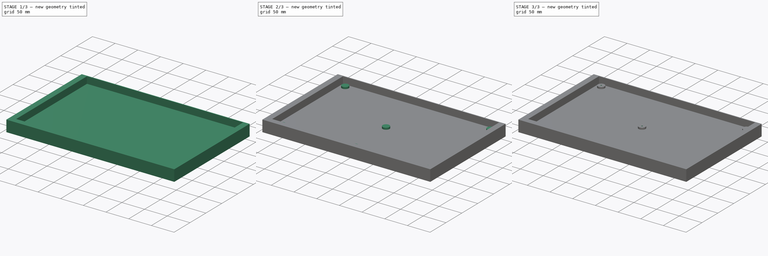
[diagram: build sequence overview — one tinted view per stage of 3, left to right]
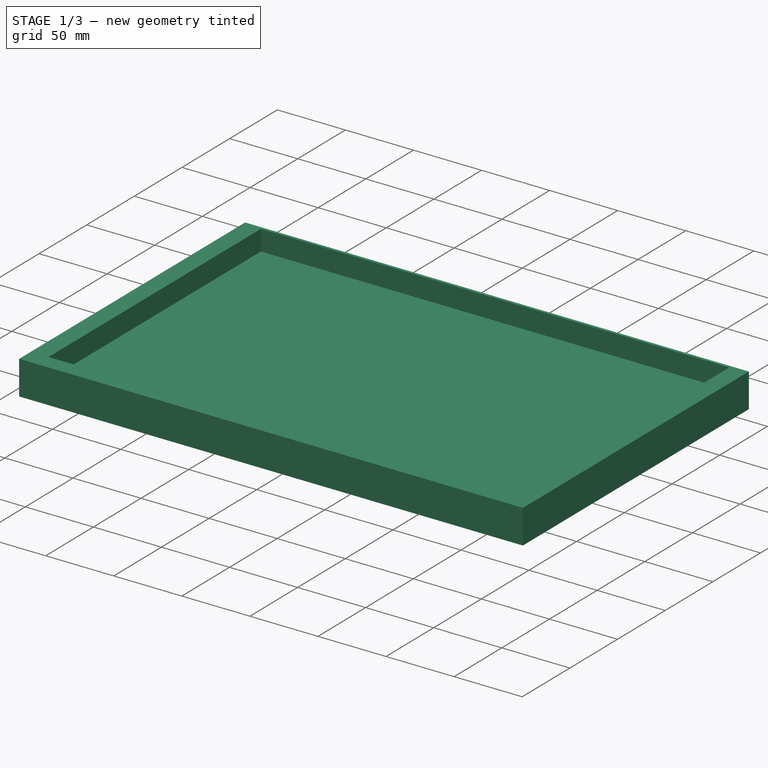
[diagram: stage 1 of 3 — iso view after this stage's code; geometry added in this stage tinted green]
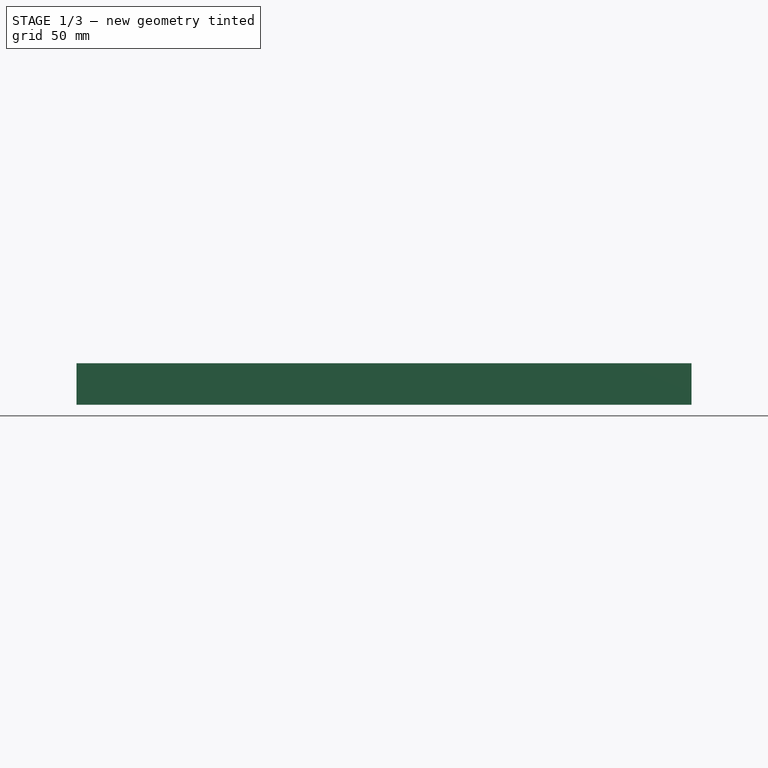
[diagram: stage 1 of 3 — front view after this stage's code; geometry added in this stage tinted green]
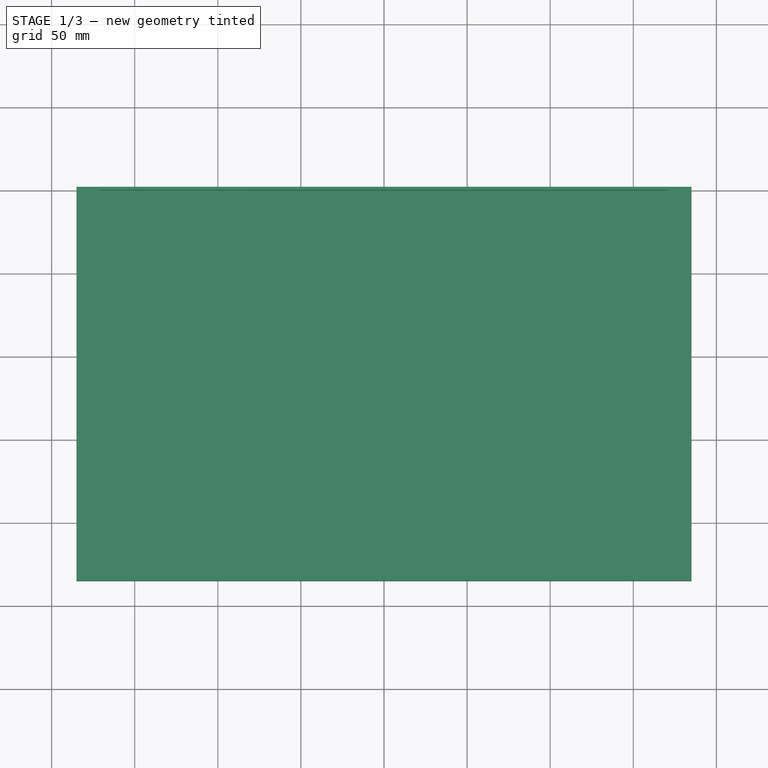
[diagram: stage 1 of 3 — top view after this stage's code; geometry added in this stage tinted green]
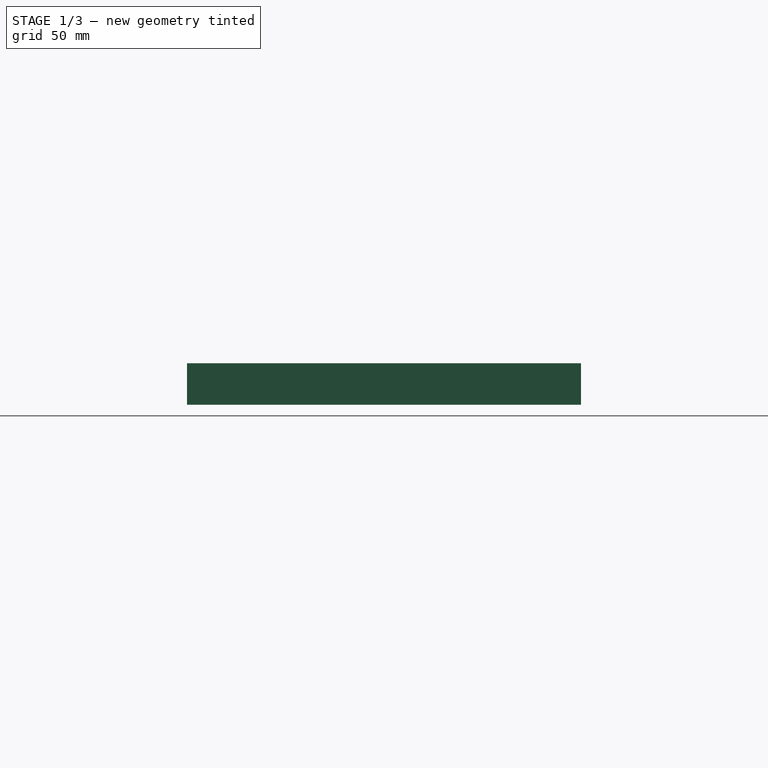
[diagram: stage 1 of 3 — right view after this stage's code; geometry added in this stage tinted green]
FCSTD DOCUMENT  (FreeCAD 0.21R33771 (Git))
Label: Udong
License: All rights reserved
LicenseURL: https://en.wikipedia.org/wiki/All_rights_reserved
objects: App::Link×91, Part::Feature×21, Sketcher::SketchObject×8, App::Part×8, PartDesign::CoordinateSystem×3, PartDesign::Pad×2, PartDesign::Pocket×2, Spreadsheet::Sheet×1, PartDesign::Hole×1, PartDesign::Body×1
note: 43 computed .brp shape members not serialized (recipe doc carries the construction recipe); baked Part::Feature solids carry a one-line shape summary decoded from their .brp

FEATURE [PartDesign::CoordinateSystem] Local_CS_1531
  AttacherType = Attacher::AttachEngine3D
  MapMode = 2
FEATURE [Sketcher::SketchObject] Sketch
  FullyConstrained = true
  MapMode = 5
  expr: Constraints[3] = Spreadsheet.box_height
  expr: Constraints[4] = Spreadsheet.box_width
  expr: Constraints[9] = Spreadsheet.usb_wall_thickness
  sketch-geometry (4):
    g0: LineSegment StartX=-185 StartY=2 StartZ=0 EndX=185 EndY=2 EndZ=0
    g1: LineSegment StartX=185 StartY=2 StartZ=0 EndX=185 EndY=-235 EndZ=0
    g2: LineSegment StartX=185 StartY=-235 StartZ=0 EndX=-185 EndY=-235 EndZ=0
    g3: LineSegment StartX=-185 StartY=-235 StartZ=0 EndX=-185 EndY=2 EndZ=0
  constraints (11):
    c: Horizontal(g2)
    c: Vertical(g1)
    c: Vertical(g3)
    c: DistanceY(g1,g1) = 237
    c: DistanceX(g0,g0) = 370
    c: Coincident(g2,g1)
    c: Coincident(g3,g2)
    c: Coincident(g0,g1)
    c: Coincident(g0,g3)
    c: DistanceY(g-1,g0) = 2
    c: Symmetric(g0,g0,g-2)
FEATURE [PartDesign::CoordinateSystem] Local_CS_1532
  AttacherType = Attacher::AttachEngine3D
  MapMode = 2
  Support = -> [X_Axis001]
FEATURE [Part::Feature] Pcb_1531
  Placement = pos=(-210,20,0) rot=(0,0,1;0rad)
  shape: bbox 340 x 220 x 1 mm, 130 faces (baked)
FEATURE [Sketcher::SketchObject] PCB_Sketch_1531
  FullyConstrained = false
  sketch-geometry (4):
    g0: LineSegment StartX=-170 StartY=0 StartZ=0 EndX=170 EndY=0 EndZ=0
    g1: LineSegment StartX=170 StartY=0 StartZ=0 EndX=170 EndY=-220 EndZ=0
    g2: LineSegment StartX=170 StartY=-220 StartZ=0 EndX=-170 EndY=-220 EndZ=0
    g3: LineSegment StartX=-170 StartY=-220 StartZ=0 EndX=-170 EndY=0 EndZ=0
  constraints (4):
    c: Coincident(g2,g3)
    c: Coincident(g0,g3)
    c: Coincident(g1,g2)
    c: Coincident(g0,g1)
FEATURE [App::Part] Board_Geoms_1531
  Group = -> [Pcb_1531,PCB_Sketch_1531]
  Origin = -> Origin
FEATURE [Part::Feature] Shape  label="C50_C_0603_1608Metric_c96c1e5c2c5""
  Placement = pos=(38.445,-71.5,0) rot=(0,0,1;3.14159rad)
  shape: bbox 1.6 x 0.8 x 0.8 mm, 28 faces (baked)
FEATURE [Part::Feature] Shape001  label="R26_R_0603_1608Metric_21c035ecaa6""
  Placement = pos=(8.505,-133.5,0) rot=(0,0,1;3.14159rad)
  shape: bbox 1.6 x 0.8 x 0.45 mm, 26 faces (baked)
FEATURE [Part::Feature] Shape002  label="U22_SOIC_16_39x99mm_P127mm_6378aad0377""
  Placement = pos=(2.525,-49.525,0) rot=(0,0,1;1.5708rad)
  shape: bbox 9.9 x 6 x 1.75 mm, 276 faces (baked)
FEATURE [App::Link] C50_C_0603_1608Metric_c96c1e5c2c5__ln_  label="C47_C_0603_1608Metric_5ed9ba1823f""
  LinkPlacement = pos=(100.68,-82.39,0) rot=(0,0,1;0rad)
  LinkedObject = -> Shape
  Placement = pos=(100.68,-82.39,0) rot=(0,0,1;0rad)
FEATURE [Part::Feature] Shape003  label="R12_R_0402_1005Metric_db9d78effdc""
  Placement = pos=(114.68,-21.74,0) rot=(0,0,1;0rad)
  shape: bbox 1 x 0.5 x 0.35 mm, 26 faces (baked)
FEATURE [App::Link] R26_R_0603_1608Metric_21c035ecaa6__ln_  label="R29_R_0603_1608Metric_bb5f2daf42d""
  LinkPlacement = pos=(68.265,-63.5,0) rot=(0,0,1;3.14159rad)
  LinkedObject = -> Shape001
  Placement = pos=(68.265,-63.5,0) rot=(0,0,1;3.14159rad)
FEATURE [App::Link] C50_C_0603_1608Metric_c96c1e5c2c5__ln_001  label="C24_C_0603_1608Metric_a66f28ce9f9""
  LinkPlacement = pos=(-96.5,-64,0) rot=(0,0,1;3.14159rad)
  LinkedObject = -> Shape
  Placement = pos=(-96.5,-64,0) rot=(0,0,1;3.14159rad)
FEATURE [App::Link] R12_R_0402_1005Metric_db9d78effdc__ln_  label="R4_R_0402_1005Metric_258b4fce30b""
  LinkPlacement = pos=(-9.55,-30.3,0) rot=(0,0,1;3.14159rad)
  LinkedObject = -> Shape003
  Placement = pos=(-9.55,-30.3,0) rot=(0,0,1;3.14159rad)
FEATURE [Part::Feature] Shape004  label="Y1_Crystal_SMD_3225-4Pin_3.2x2.5mm_24c05a89e76""
  Placement = pos=(-0.6,-40.55,0) rot=(0,0,1;0rad)
  shape: bbox 3.2 x 2.501 x 0.64 mm, 28 faces (baked)
FEATURE [App::Link] C50_C_0603_1608Metric_c96c1e5c2c5__ln_002  label="C26_C_0603_1608Metric_c5d0a92b761""
  LinkPlacement = pos=(-126.5,-69,0) rot=(0,0,1;3.14159rad)
  LinkedObject = -> Shape
  Placement = pos=(-126.5,-69,0) rot=(0,0,1;3.14159rad)
FEATURE [Part::Feature] Shape005  label="C10_C_0402_1005Metric_8051af329a5""
  Placement = pos=(6.63,-31.92,0) rot=(0,0,1;0rad)
  shape: bbox 1 x 0.5 x 0.5 mm, 28 faces (baked)
FEATURE [App::Link] C50_C_0603_1608Metric_c96c1e5c2c5__ln_003  label="C42_C_0603_1608Metric_10c421a70c2""
  LinkPlacement = pos=(-6.475,-74.3,0) rot=(0,0,1;3.14159rad)
  LinkedObject = -> Shape
  Placement = pos=(-6.475,-74.3,0) rot=(0,0,1;3.14159rad)
FEATURE [App::Link] R12_R_0402_1005Metric_db9d78effdc__ln_001  label="R3_R_0402_1005Metric_57ae49104c8""
  LinkPlacement = pos=(-6.75,-5,0) rot=(0,0,1;0rad)
  LinkedObject = -> Shape003
  Placement = pos=(-6.75,-5,0) rot=(0,0,1;0rad)
FEATURE [App::Link] C50_C_0603_1608Metric_c96c1e5c2c5__ln_004  label="C28_C_0603_1608Metric_c915e1eda8a""
  LinkPlacement = pos=(-36.5,-64,0) rot=(0,0,1;3.14159rad)
  LinkedObject = -> Shape
  Placement = pos=(-36.5,-64,0) rot=(0,0,1;3.14159rad)
FEATURE [Part::Feature] Shape006  label="U18_SOT_23_eb7cd9b5780""
  Placement = pos=(10,-137.5,0) rot=(0,0,-1;1.5708rad)
  shape: bbox 3 x 2.5 x 1.2 mm, 76 faces (baked)
FEATURE [App::Link] C10_C_0402_1005Metric_8051af329a5__ln_  label="C8_C_0402_1005Metric_ed7bc4dc480""
  LinkPlacement = pos=(-5.68,-31.3,0) rot=(0,0,1;3.14159rad)
  LinkedObject = -> Shape005
  Placement = pos=(-5.68,-31.3,0) rot=(0,0,1;3.14159rad)
FEATURE [Part::Feature] Shape007  label="U1_SOT_223_39912d8b5e6""
  Placement = pos=(9.03,-15.226,0) rot=(0,0,-1;1.5708rad)
  shape: bbox 6.5 x 7 x 1.7 mm, 78 faces (baked)
FEATURE [App::Link] R26_R_0603_1608Metric_21c035ecaa6__ln_001  label="R14_R_0603_1608Metric_fb17d531891""
  LinkPlacement = pos=(-66.55,-61,0) rot=(0,0,1;3.14159rad)
  LinkedObject = -> Shape001
  Placement = pos=(-66.55,-61,0) rot=(0,0,1;3.14159rad)
FEATURE [App::Link] C50_C_0603_1608Metric_c96c1e5c2c5__ln_005  label="C51_C_0603_1608Metric_9cca8630005""
  LinkPlacement = pos=(70.79,-72.86,0) rot=(0,0,1;0rad)
  LinkedObject = -> Shape
  Placement = pos=(70.79,-72.86,0) rot=(0,0,1;0rad)
FEATURE [App::Link] R12_R_0402_1005Metric_db9d78effdc__ln_002  label="R2_R_0402_1005Metric_2f3c0bcd080""
  LinkPlacement = pos=(-6.76,-3.9,0) rot=(0,0,1;3.14159rad)
  LinkedObject = -> Shape003
  Placement = pos=(-6.76,-3.9,0) rot=(0,0,1;3.14159rad)
FEATURE [App::Link] R12_R_0402_1005Metric_db9d78effdc__ln_003  label="R6_R_0402_1005Metric_90d1c5fa8d6""
  LinkPlacement = pos=(-7.64,-30.3,0) rot=(0,0,1;3.14159rad)
  LinkedObject = -> Shape003
  Placement = pos=(-7.64,-30.3,0) rot=(0,0,1;3.14159rad)
FEATURE [App::Link] R12_R_0402_1005Metric_db9d78effdc__ln_004  label="R5_R_0402_1005Metric_a46c18ed2be""
  LinkPlacement = pos=(-15.352,-11.645,0) rot=(0,0,1;3.14159rad)
  LinkedObject = -> Shape003
  Placement = pos=(-15.352,-11.645,0) rot=(0,0,1;3.14159rad)
FEATURE [App::Link] C50_C_0603_1608Metric_c96c1e5c2c5__ln_006  label="C52_C_0603_1608Metric_5cf961af84a""
  LinkPlacement = pos=(68.275,-61.85,0) rot=(0,0,1;3.14159rad)
  LinkedObject = -> Shape
  Placement = pos=(68.275,-61.85,0) rot=(0,0,1;3.14159rad)
FEATURE [App::Link] C10_C_0402_1005Metric_8051af329a5__ln_001  label="C11_C_0402_1005Metric_d58156f1c66""
  LinkPlacement = pos=(8.67,-25.65,0) rot=(0,0,1;0rad)
  LinkedObject = -> Shape005
  Placement = pos=(8.67,-25.65,0) rot=(0,0,1;0rad)
FEATURE [App::Link] U18_SOT_23_eb7cd9b5780__ln_  label="U20_SOT_23_193b0e0585e""
  LinkPlacement = pos=(39.92,-77.5,0) rot=(0,0,-1;1.5708rad)
  LinkedObject = -> Shape006
  Placement = pos=(39.92,-77.5,0) rot=(0,0,-1;1.5708rad)
FEATURE [Part::Feature] Part__Feature  label="ConPins"
  shape: bbox 6 x 4.32 x 0.61 mm, 70 faces (baked)
FEATURE [Part::Feature] Part__Feature001  label="PcbPins"
  shape: bbox 6.9 x 0.99 x 0.3 mm, 122 faces (baked)
FEATURE [Part::Feature] Part__Feature002  label="Mold"
  shape: bbox 8.95 x 6.5 x 3.731 mm, 55 faces (baked)
FEATURE [Part::Feature] Part__Feature003  label="Frame"
  shape: bbox 8.95 x 7.3 x 4.2 mm, 323 faces (baked)
FEATURE [App::Part] HRO_TYPE_C_31_M_12  label="J1_HRO_TYPE_C_31_M_12_6a9f92c07a2""
  Group = -> [Part__Feature,Part__Feature001,Part__Feature002,Part__Feature003]
  Origin = -> Origin008
  Placement = pos=(4.494,0.55,0) rot=(0,0,1;3.14159rad)
FEATURE [App::Link] R12_R_0402_1005Metric_db9d78effdc__ln_005  label="R1_R_0402_1005Metric_6123cfe5b15""
  LinkPlacement = pos=(-5.69,-30.3,0) rot=(0,0,1;3.14159rad)
  LinkedObject = -> Shape003
  Placement = pos=(-5.69,-30.3,0) rot=(0,0,1;3.14159rad)
FEATURE [App::Link] C10_C_0402_1005Metric_8051af329a5__ln_002  label="C15_C_0402_1005Metric_32920b63574""
  LinkPlacement = pos=(-3.9,-16.57,0) rot=(0,0,1;1.5708rad)
  LinkedObject = -> Shape005
  Placement = pos=(-3.9,-16.57,0) rot=(0,0,1;1.5708rad)
FEATURE [Part::Feature] Shape008  label="C20_C_0805_2012Metric_c2799205fcc""
  Placement = pos=(-74.2,-40.075,0) rot=(0,0,-1;1.5708rad)
  shape: bbox 1.25 x 2 x 1.25 mm, 28 faces (baked)
FEATURE [App::Link] C50_C_0603_1608Metric_c96c1e5c2c5__ln_007  label="C36_C_0603_1608Metric_a18fb9cf965""
  LinkPlacement = pos=(-66.445,-91.49,0) rot=(0,0,1;3.14159rad)
  LinkedObject = -> Shape
  Placement = pos=(-66.445,-91.49,0) rot=(0,0,1;3.14159rad)
FEATURE [App::Link] C10_C_0402_1005Metric_8051af329a5__ln_003  label="C16_C_0402_1005Metric_c64c3fe8ec7""
  LinkPlacement = pos=(128.77,-20.5,0) rot=(0,0,1;0rad)
  LinkedObject = -> Shape005
  Placement = pos=(128.77,-20.5,0) rot=(0,0,1;0rad)
FEATURE [App::Link] C50_C_0603_1608Metric_c96c1e5c2c5__ln_008  label="C30_C_0603_1608Metric_3292674c1e6""
  LinkPlacement = pos=(-126.525,-101.5,0) rot=(0,0,1;3.14159rad)
  LinkedObject = -> Shape
  Placement = pos=(-126.525,-101.5,0) rot=(0,0,1;3.14159rad)
FEATURE [App::Link] C10_C_0402_1005Metric_8051af329a5__ln_004  label="C12_C_0402_1005Metric_4aea76d61e9""
  LinkPlacement = pos=(8.67,-26.6,0) rot=(0,0,1;0rad)
  LinkedObject = -> Shape005
  Placement = pos=(8.67,-26.6,0) rot=(0,0,1;0rad)
FEATURE [App::Link] C50_C_0603_1608Metric_c96c1e5c2c5__ln_009  label="C37_C_0603_1608Metric_44cd4f96dfb""
  LinkPlacement = pos=(125.61,-107.58,0) rot=(0,0,1;0rad)
  LinkedObject = -> Shape
  Placement = pos=(125.61,-107.58,0) rot=(0,0,1;0rad)
FEATURE [App::Link] C50_C_0603_1608Metric_c96c1e5c2c5__ln_010  label="C49_C_0603_1608Metric_df72e46ba2a""
  LinkPlacement = pos=(40.605,-82.86,0) rot=(0,0,1;0rad)
  LinkedObject = -> Shape
  Placement = pos=(40.605,-82.86,0) rot=(0,0,1;0rad)
FEATURE [App::Link] C10_C_0402_1005Metric_8051af329a5__ln_005  label="C6_C_0402_1005Metric_80b337fe1a7""
  LinkPlacement = pos=(-0.5,-22.9,0) rot=(0,0,1;1.5708rad)
  LinkedObject = -> Shape005
  Placement = pos=(-0.5,-22.9,0) rot=(0,0,1;1.5708rad)
FEATURE [App::Link] C50_C_0603_1608Metric_c96c1e5c2c5__ln_011  label="C39_C_0603_1608Metric_eccfd1e353f""
  LinkPlacement = pos=(-19.33,-132.83,0) rot=(0,0,1;0rad)
  LinkedObject = -> Shape
  Placement = pos=(-19.33,-132.83,0) rot=(0,0,1;0rad)
FEATURE [App::Link] C10_C_0402_1005Metric_8051af329a5__ln_006  label="C4_C_0402_1005Metric_17d61923515""
  LinkPlacement = pos=(-1.5,-22.58,0) rot=(0,0,1;1.5708rad)
  LinkedObject = -> Shape005
  Placement = pos=(-1.5,-22.58,0) rot=(0,0,1;1.5708rad)
FEATURE [App::Link] R26_R_0603_1608Metric_21c035ecaa6__ln_002  label="R16_R_0603_1608Metric_ccc08d43b62""
  LinkPlacement = pos=(-126.55,-70.8,0) rot=(0,0,1;3.14159rad)
  LinkedObject = -> Shape001
  Placement = pos=(-126.55,-70.8,0) rot=(0,0,1;3.14159rad)
FEATURE [App::Link] R26_R_0603_1608Metric_21c035ecaa6__ln_003  label="R23_R_0603_1608Metric_8ae852cfb8c""
  LinkPlacement = pos=(-21.575,-123.5,0) rot=(0,0,1;3.14159rad)
  LinkedObject = -> Shape001
  Placement = pos=(-21.575,-123.5,0) rot=(0,0,1;3.14159rad)
FEATURE [App::Link] C10_C_0402_1005Metric_8051af329a5__ln_007  label="C18_C_0402_1005Metric_785087baeae""
  LinkPlacement = pos=(-2.98,-37.9,0) rot=(0,0,1;0rad)
  LinkedObject = -> Shape005
  Placement = pos=(-2.98,-37.9,0) rot=(0,0,1;0rad)
FEATURE [App::Link] U18_SOT_23_eb7cd9b5780__ln_001  label="U11_SOT_23_c54e9ac4579""
  LinkPlacement = pos=(-35.055,-102.5,0) rot=(0,0,-1;1.5708rad)
  LinkedObject = -> Shape006
  Placement = pos=(-35.055,-102.5,0) rot=(0,0,-1;1.5708rad)
FEATURE [App::Link] U18_SOT_23_eb7cd9b5780__ln_002  label="U14_SOT_23_c796a763239""
  LinkPlacement = pos=(124.92,-102.5,0) rot=(0,0,-1;1.5708rad)
  LinkedObject = -> Shape006
  Placement = pos=(124.92,-102.5,0) rot=(0,0,-1;1.5708rad)
FEATURE [App::Link] U18_SOT_23_eb7cd9b5780__ln_003  label="U13_SOT_23_def66e8df92""
  LinkPlacement = pos=(-65,-97.5,0) rot=(0,0,-1;1.5708rad)
  LinkedObject = -> Shape006
  Placement = pos=(-65,-97.5,0) rot=(0,0,-1;1.5708rad)
FEATURE [App::Link] C50_C_0603_1608Metric_c96c1e5c2c5__ln_012  label="C44_C_0603_1608Metric_8ad17236dae""
  LinkPlacement = pos=(68.555,-31.5,0) rot=(0,0,1;3.14159rad)
  LinkedObject = -> Shape
  Placement = pos=(68.555,-31.5,0) rot=(0,0,1;3.14159rad)
FEATURE [App::Link] U18_SOT_23_eb7cd9b5780__ln_004  label="U19_SOT_23_1b1c07f0015""
  LinkPlacement = pos=(99.92,-77.5,0) rot=(0,0,-1;1.5708rad)
  LinkedObject = -> Shape006
  Placement = pos=(99.92,-77.5,0) rot=(0,0,-1;1.5708rad)
FEATURE [Part::Feature] Shape009  label="U4_SOT_353_SC_70_5_c5c4a7ec4eb""
  Placement = pos=(22.858,-12.6,0) rot=(0,0,1;1.5708rad)
  shape: bbox 2 x 2 x 1.05 mm, 104 faces (baked)
FEATURE [App::Link] C10_C_0402_1005Metric_8051af329a5__ln_008  label="C14_C_0402_1005Metric_135e438a0c9""
  LinkPlacement = pos=(4.204,-23.964,0) rot=(0,0,1;1.5708rad)
  LinkedObject = -> Shape005
  Placement = pos=(4.204,-23.964,0) rot=(0,0,1;1.5708rad)
FEATURE [App::Link] R12_R_0402_1005Metric_db9d78effdc__ln_006  label="R7_R_0402_1005Metric_7976de52eb1""
  LinkPlacement = pos=(-7.359,-8.103,0) rot=(0,0,-1;1.5708rad)
  LinkedObject = -> Shape003
  Placement = pos=(-7.359,-8.103,0) rot=(0,0,-1;1.5708rad)
FEATURE [App::Link] R26_R_0603_1608Metric_21c035ecaa6__ln_004  label="R22_R_0603_1608Metric_a8b4c104d3f""
  LinkPlacement = pos=(123.495,-98.6,0) rot=(0,0,1;3.14159rad)
  LinkedObject = -> Shape001
  Placement = pos=(123.495,-98.6,0) rot=(0,0,1;3.14159rad)
FEATURE [Part::Feature] Shape010  label="J3_PinSocket_1x03_P254mm_Horizontal_5e44ceccd07""
  Placement = pos=(-39.5,-10.5,0) rot=(0,0,-1;1.5708rad)
  shape: bbox 7.62 x 10.13 x 5.84 mm, 115 faces (baked)
FEATURE [App::Link] C10_C_0402_1005Metric_8051af329a5__ln_009  label="C19_C_0402_1005Metric_96db7f3dd26""
  LinkPlacement = pos=(0.22,-37.9,0) rot=(0,0,1;0rad)
  LinkedObject = -> Shape005
  Placement = pos=(0.22,-37.9,0) rot=(0,0,1;0rad)
FEATURE [Part::Feature] Shape011  label="U2_SOT_23_6_b919badb54f""
  Placement = pos=(0.2,-13.2335,0) rot=(0,0,-1;1.5708rad)
  shape: bbox 2.9 x 2.8 x 1.55 mm, 124 faces (baked)
FEATURE [App::Link] C10_C_0402_1005Metric_8051af329a5__ln_010  label="C13_C_0402_1005Metric_c561e764fb2""
  LinkPlacement = pos=(3.188,-23.964,0) rot=(0,0,1;1.5708rad)
  LinkedObject = -> Shape005
  Placement = pos=(3.188,-23.964,0) rot=(0,0,1;1.5708rad)
FEATURE [App::Link] U22_SOIC_16_39x99mm_P127mm_6378aad0377__ln_  label="U23_SOIC_16_39x99mm_P127mm_be25011a4b5""
  LinkPlacement = pos=(18.635,-49.5,0) rot=(0,0,1;1.5708rad)
  LinkedObject = -> Shape002
  Placement = pos=(18.635,-49.5,0) rot=(0,0,1;1.5708rad)
FEATURE [App::Link] U18_SOT_23_eb7cd9b5780__ln_005  label="U7_SOT_23_865893f3b19""
  LinkPlacement = pos=(-95.055,-70,0) rot=(0,0,-1;1.5708rad)
  LinkedObject = -> Shape006
  Placement = pos=(-95.055,-70,0) rot=(0,0,-1;1.5708rad)
FEATURE [App::Link] C50_C_0603_1608Metric_c96c1e5c2c5__ln_013  label="C33_C_0603_1608Metric_33d0c5bf11b""
  LinkPlacement = pos=(-94.26,-108.14,0) rot=(0,0,1;0rad)
  LinkedObject = -> Shape
  Placement = pos=(-94.26,-108.14,0) rot=(0,0,1;0rad)
FEATURE [App::Link] R12_R_0402_1005Metric_db9d78effdc__ln_007  label="R11_R_0402_1005Metric_d86542a4989""
  LinkPlacement = pos=(1.8,-23.9405,0) rot=(0,0,-1;1.5708rad)
  LinkedObject = -> Shape003
  Placement = pos=(1.8,-23.9405,0) rot=(0,0,-1;1.5708rad)
FEATURE [App::Link] R26_R_0603_1608Metric_21c035ecaa6__ln_005  label="R27_R_0603_1608Metric_0e33b4e58e1""
  LinkPlacement = pos=(98.505,-73.5,0) rot=(0,0,1;3.14159rad)
  LinkedObject = -> Shape001
  Placement = pos=(98.505,-73.5,0) rot=(0,0,1;3.14159rad)
FEATURE [Part::Feature] Shape012  label="U5_QFN-56-1EP_7x7mm_Pitch0.4mm_8d1bc4d90c8""
  Placement = pos=(0.08,-30.274,0) rot=(0,0,1;0rad)
  shape: bbox 7 x 7 x 0.92 mm, 350 faces (baked)
FEATURE [App::Link] R12_R_0402_1005Metric_db9d78effdc__ln_008  label="R8_R_0402_1005Metric_e16a0006320""
  LinkPlacement = pos=(15.85,-18.84,0) rot=(0,0,-1;1.5708rad)
  LinkedObject = -> Shape003
  Placement = pos=(15.85,-18.84,0) rot=(0,0,-1;1.5708rad)
FEATURE [App::Link] U18_SOT_23_eb7cd9b5780__ln_006  label="U10_SOT_23_3e4a07b202c""
  LinkPlacement = pos=(-125.08,-107.5,0) rot=(0,0,-1;1.5708rad)
  LinkedObject = -> Shape006
  Placement = pos=(-125.08,-107.5,0) rot=(0,0,-1;1.5708rad)
FEATURE [App::Link] R26_R_0603_1608Metric_21c035ecaa6__ln_006  label="R25_R_0603_1608Metric_11cd58ee3bf""
  LinkPlacement = pos=(68.58,-33.5,0) rot=(0,0,1;3.14159rad)
  LinkedObject = -> Shape001
  Placement = pos=(68.58,-33.5,0) rot=(0,0,1;3.14159rad)
FEATURE [App::Link] U18_SOT_23_eb7cd9b5780__ln_007  label="U12_SOT_23_0a085770ca6""
  LinkPlacement = pos=(-95,-102.5,0) rot=(0,0,-1;1.5708rad)
  LinkedObject = -> Shape006
  Placement = pos=(-95,-102.5,0) rot=(0,0,-1;1.5708rad)
FEATURE [App::Link] C50_C_0603_1608Metric_c96c1e5c2c5__ln_014  label="C40_C_0603_1608Metric_97e5f20cd94""
  LinkPlacement = pos=(-21.525,-121.8,0) rot=(0,0,1;3.14159rad)
  LinkedObject = -> Shape
  Placement = pos=(-21.525,-121.8,0) rot=(0,0,1;3.14159rad)
FEATURE [App::Link] R26_R_0603_1608Metric_21c035ecaa6__ln_007  label="R20_R_0603_1608Metric_03efb36ce37""
  LinkPlacement = pos=(-96.495,-98.5,0) rot=(0,0,1;3.14159rad)
  LinkedObject = -> Shape001
  Placement = pos=(-96.495,-98.5,0) rot=(0,0,1;3.14159rad)
FEATURE [App::Link] C50_C_0603_1608Metric_c96c1e5c2c5__ln_015  label="C21_C_0603_1608Metric_d27d73a4e6d""
  LinkPlacement = pos=(-64.33,-70.59,0) rot=(0,0,1;0rad)
  LinkedObject = -> Shape
  Placement = pos=(-64.33,-70.59,0) rot=(0,0,1;0rad)
FEATURE [App::Link] R26_R_0603_1608Metric_21c035ecaa6__ln_008  label="R24_R_0603_1608Metric_e26bc699a82""
  LinkPlacement = pos=(-6.495,-76,0) rot=(0,0,1;3.14159rad)
  LinkedObject = -> Shape001
  Placement = pos=(-6.495,-76,0) rot=(0,0,1;3.14159rad)
FEATURE [App::Link] R26_R_0603_1608Metric_21c035ecaa6__ln_009  label="R15_R_0603_1608Metric_99d7860f7d8""
  LinkPlacement = pos=(-96.55,-65.8,0) rot=(0,0,1;3.14159rad)
  LinkedObject = -> Shape001
  Placement = pos=(-96.55,-65.8,0) rot=(0,0,1;3.14159rad)
FEATURE [App::Link] U18_SOT_23_eb7cd9b5780__ln_008  label="U16_SOT_23_823f3f7b337""
  LinkPlacement = pos=(-5,-80,0) rot=(0,0,-1;1.5708rad)
  LinkedObject = -> Shape006
  Placement = pos=(-5,-80,0) rot=(0,0,-1;1.5708rad)
FEATURE [App::Link] R26_R_0603_1608Metric_21c035ecaa6__ln_010  label="R18_R_0603_1608Metric_af1bb1786c9""
  LinkPlacement = pos=(-126.575,-103.5,0) rot=(0,0,1;3.14159rad)
  LinkedObject = -> Shape001
  Placement = pos=(-126.575,-103.5,0) rot=(0,0,1;3.14159rad)
FEATURE [App::Link] C50_C_0603_1608Metric_c96c1e5c2c5__ln_016  label="C29_C_0603_1608Metric_1b0acdc6366""
  LinkPlacement = pos=(-124.34,-112.97,0) rot=(0,0,1;0rad)
  LinkedObject = -> Shape
  Placement = pos=(-124.34,-112.97,0) rot=(0,0,1;0rad)
FEATURE [App::Link] C50_C_0603_1608Metric_c96c1e5c2c5__ln_017  label="C46_C_0603_1608Metric_1f436d3a905""
  LinkPlacement = pos=(8.575,-131.85,0) rot=(0,0,1;3.14159rad)
  LinkedObject = -> Shape
  Placement = pos=(8.575,-131.85,0) rot=(0,0,1;3.14159rad)
FEATURE [App::Link] R12_R_0402_1005Metric_db9d78effdc__ln_009  label="R13_R_0402_1005Metric_abb4721bf58""
  LinkPlacement = pos=(-1.282,-36.031,0) rot=(0,0,-1;1.5708rad)
  LinkedObject = -> Shape003
  Placement = pos=(-1.282,-36.031,0) rot=(0,0,-1;1.5708rad)
FEATURE [App::Link] C10_C_0402_1005Metric_8051af329a5__ln_011  label="C3_C_0402_1005Metric_43923112acb""
  LinkPlacement = pos=(-6.216,-8.131,0) rot=(0,0,-1;1.5708rad)
  LinkedObject = -> Shape005
  Placement = pos=(-6.216,-8.131,0) rot=(0,0,-1;1.5708rad)
FEATURE [App::Link] C50_C_0603_1608Metric_c96c1e5c2c5__ln_018  label="C38_C_0603_1608Metric_d5bef6ac2ba""
  LinkPlacement = pos=(123.445,-96.8,0) rot=(0,0,1;3.14159rad)
  LinkedObject = -> Shape
  Placement = pos=(123.445,-96.8,0) rot=(0,0,1;3.14159rad)
FEATURE [App::Link] U18_SOT_23_eb7cd9b5780__ln_009  label="U8_SOT_23_ac675bc4a8c""
  LinkPlacement = pos=(-125.055,-75,0) rot=(0,0,-1;1.5708rad)
  LinkedObject = -> Shape006
  Placement = pos=(-125.055,-75,0) rot=(0,0,-1;1.5708rad)
FEATURE [App::Link] C20_C_0805_2012Metric_c2799205fcc__ln_  label="C1_C_0805_2012Metric_0a73e855881""
  LinkPlacement = pos=(8.969,-9.105,0) rot=(0,0,1;0rad)
  LinkedObject = -> Shape008
  Placement = pos=(8.969,-9.105,0) rot=(0,0,1;0rad)
FEATURE [App::Link] C20_C_0805_2012Metric_c2799205fcc__ln_001  label="C2_C_0805_2012Metric_062222af47f""
  LinkPlacement = pos=(9.985,-21.297,0) rot=(0,0,1;0rad)
  LinkedObject = -> Shape008
  Placement = pos=(9.985,-21.297,0) rot=(0,0,1;0rad)
FEATURE [Part::Feature] Shape013  label="D1_LED_0805_2012Metric_8ef331ff65c""
  Placement = pos=(15.85,-16.0125,0) rot=(0,0,-1;1.5708rad)
  shape: bbox 1.25 x 2 x 1.1 mm, 50 faces (baked)
FEATURE [App::Link] U18_SOT_23_eb7cd9b5780__ln_010  label="U21_SOT_23_6939684d3e7""
  LinkPlacement = pos=(69.92,-67.5,0) rot=(0,0,-1;1.5708rad)
  LinkedObject = -> Shape006
  Placement = pos=(69.92,-67.5,0) rot=(0,0,-1;1.5708rad)
FEATURE [App::Link] U18_SOT_23_eb7cd9b5780__ln_011  label="U15_SOT_23_8c49c6d764d""
  LinkPlacement = pos=(-20.08,-127.5,0) rot=(0,0,-1;1.5708rad)
  LinkedObject = -> Shape006
  Placement = pos=(-20.08,-127.5,0) rot=(0,0,-1;1.5708rad)
FEATURE [App::Link] C50_C_0603_1608Metric_c96c1e5c2c5__ln_019  label="C41_C_0603_1608Metric_5efbc6fcce8""
  LinkPlacement = pos=(-4.25,-85.15,0) rot=(0,0,1;0rad)
  LinkedObject = -> Shape
  Placement = pos=(-4.25,-85.15,0) rot=(0,0,1;0rad)
FEATURE [App::Link] R26_R_0603_1608Metric_21c035ecaa6__ln_011  label="R28_R_0603_1608Metric_ca803929422""
  LinkPlacement = pos=(38.245,-73,0) rot=(0,0,1;3.14159rad)
  LinkedObject = -> Shape001
  Placement = pos=(38.245,-73,0) rot=(0,0,1;3.14159rad)
FEATURE [App::Link] C10_C_0402_1005Metric_8051af329a5__ln_012  label="C17_C_0402_1005Metric_1d70192b1d6""
  LinkPlacement = pos=(148.93,-21.76,0) rot=(0,0,1;0rad)
  LinkedObject = -> Shape005
  Placement = pos=(148.93,-21.76,0) rot=(0,0,1;0rad)
FEATURE [App::Link] C50_C_0603_1608Metric_c96c1e5c2c5__ln_020  label="C27_C_0603_1608Metric_68609b71c4c""
  LinkPlacement = pos=(-34.32,-75.47,0) rot=(0,0,1;0rad)
  LinkedObject = -> Shape
  Placement = pos=(-34.32,-75.47,0) rot=(0,0,1;0rad)
FEATURE [App::Link] C50_C_0603_1608Metric_c96c1e5c2c5__ln_021  label="C48_C_0603_1608Metric_2be96427cfd""
  LinkPlacement = pos=(98.555,-71.5,0) rot=(0,0,1;3.14159rad)
  LinkedObject = -> Shape
  Placement = pos=(98.555,-71.5,0) rot=(0,0,1;3.14159rad)
FEATURE [App::Link] U18_SOT_23_eb7cd9b5780__ln_012  label="U9_SOT_23_0b814825c75""
  LinkPlacement = pos=(-35.055,-70,0) rot=(0,0,-1;1.5708rad)
  LinkedObject = -> Shape006
  Placement = pos=(-35.055,-70,0) rot=(0,0,-1;1.5708rad)
FEATURE [App::Link] R12_R_0402_1005Metric_db9d78effdc__ln_010  label="R10_R_0402_1005Metric_8eb79d176a4""
  LinkPlacement = pos=(0.786,-23.94,0) rot=(0,0,-1;1.5708rad)
  LinkedObject = -> Shape003
  Placement = pos=(0.786,-23.94,0) rot=(0,0,-1;1.5708rad)
FEATURE [App::Link] U18_SOT_23_eb7cd9b5780__ln_013  label="U6_SOT_23_2c86b474dd3""
  LinkPlacement = pos=(-65.055,-65,0) rot=(0,0,-1;1.5708rad)
  LinkedObject = -> Shape006
  Placement = pos=(-65.055,-65,0) rot=(0,0,-1;1.5708rad)
FEATURE [App::Link] R26_R_0603_1608Metric_21c035ecaa6__ln_012  label="R17_R_0603_1608Metric_c4c6afb5600""
  LinkPlacement = pos=(-36.55,-66,0) rot=(0,0,1;3.14159rad)
  LinkedObject = -> Shape001
  Placement = pos=(-36.55,-66,0) rot=(0,0,1;3.14159rad)
FEATURE [App::Link] R26_R_0603_1608Metric_21c035ecaa6__ln_013  label="R21_R_0603_1608Metric_460de85fd74""
  LinkPlacement = pos=(-66.495,-93.2,0) rot=(0,0,1;3.14159rad)
  LinkedObject = -> Shape001
  Placement = pos=(-66.495,-93.2,0) rot=(0,0,1;3.14159rad)
FEATURE [App::Link] C10_C_0402_1005Metric_8051af329a5__ln_013  label="C7_C_0402_1005Metric_0f16a34a551""
  LinkPlacement = pos=(-4.7,-27,0) rot=(0,0,1;1.5708rad)
  LinkedObject = -> Shape005
  Placement = pos=(-4.7,-27,0) rot=(0,0,1;1.5708rad)
FEATURE [App::Link] C50_C_0603_1608Metric_c96c1e5c2c5__ln_022  label="C32_C_0603_1608Metric_5ba8dae56c2""
  LinkPlacement = pos=(-36.5,-96.8,0) rot=(0,0,1;3.14159rad)
  LinkedObject = -> Shape
  Placement = pos=(-36.5,-96.8,0) rot=(0,0,1;3.14159rad)
FEATURE [App::Link] C50_C_0603_1608Metric_c96c1e5c2c5__ln_023  label="C23_C_0603_1608Metric_da1e79a7413""
  LinkPlacement = pos=(-94.27,-75.67,0) rot=(0,0,1;0rad)
  LinkedObject = -> Shape
  Placement = pos=(-94.27,-75.67,0) rot=(0,0,1;0rad)
FEATURE [App::Link] C50_C_0603_1608Metric_c96c1e5c2c5__ln_024  label="C34_C_0603_1608Metric_e05c6801456""
  LinkPlacement = pos=(-96.445,-96.5,0) rot=(0,0,1;3.14159rad)
  LinkedObject = -> Shape
  Placement = pos=(-96.445,-96.5,0) rot=(0,0,1;3.14159rad)
FEATURE [App::Link] R26_R_0603_1608Metric_21c035ecaa6__ln_014  label="R19_R_0603_1608Metric_3c8b2fa6c45""
  LinkPlacement = pos=(-36.55,-98.6,0) rot=(0,0,1;3.14159rad)
  LinkedObject = -> Shape001
  Placement = pos=(-36.55,-98.6,0) rot=(0,0,1;3.14159rad)
FEATURE [App::Link] C50_C_0603_1608Metric_c96c1e5c2c5__ln_025  label="C31_C_0603_1608Metric_37f6c312067""
  LinkPlacement = pos=(-34.28,-107.6,0) rot=(0,0,1;0rad)
  LinkedObject = -> Shape
  Placement = pos=(-34.28,-107.6,0) rot=(0,0,1;0rad)
FEATURE [App::Link] C50_C_0603_1608Metric_c96c1e5c2c5__ln_026  label="C35_C_0603_1608Metric_3832b30084e""
  LinkPlacement = pos=(-64.175,-103.09,0) rot=(0,0,1;0rad)
  LinkedObject = -> Shape
  Placement = pos=(-64.175,-103.09,0) rot=(0,0,1;0rad)
FEATURE [App::Link] C10_C_0402_1005Metric_8051af329a5__ln_014  label="C9_C_0402_1005Metric_59282185aa5""
  LinkPlacement = pos=(-0.266,-36.057,0) rot=(0,0,-1;1.5708rad)
  LinkedObject = -> Shape005
  Placement = pos=(-0.266,-36.057,0) rot=(0,0,-1;1.5708rad)
FEATURE [App::Link] C50_C_0603_1608Metric_c96c1e5c2c5__ln_027  label="C43_C_0603_1608Metric_aba2d212b0c""
  LinkPlacement = pos=(70.86,-42.74,0) rot=(0,0,1;0rad)
  LinkedObject = -> Shape
  Placement = pos=(70.86,-42.74,0) rot=(0,0,1;0rad)
FEATURE [App::Link] C10_C_0402_1005Metric_8051af329a5__ln_015  label="C5_C_0402_1005Metric_f8548dd8e42""
  LinkPlacement = pos=(0.75,-36.057,0) rot=(0,0,-1;1.5708rad)
  LinkedObject = -> Shape005
  Placement = pos=(0.75,-36.057,0) rot=(0,0,-1;1.5708rad)
FEATURE [App::Link] C50_C_0603_1608Metric_c96c1e5c2c5__ln_028  label="C22_C_0603_1608Metric_26d4b7af8f2""
  LinkPlacement = pos=(-66.5,-59.2,0) rot=(0,0,1;3.14159rad)
  LinkedObject = -> Shape
  Placement = pos=(-66.5,-59.2,0) rot=(0,0,1;3.14159rad)
FEATURE [App::Link] C50_C_0603_1608Metric_c96c1e5c2c5__ln_029  label="C45_C_0603_1608Metric_e114d69fa13""
  LinkPlacement = pos=(10.76,-142.64,0) rot=(0,0,1;0rad)
  LinkedObject = -> Shape
  Placement = pos=(10.76,-142.64,0) rot=(0,0,1;0rad)
FEATURE [App::Link] C50_C_0603_1608Metric_c96c1e5c2c5__ln_030  label="C25_C_0603_1608Metric_089b72191b7""
  LinkPlacement = pos=(-124.215,-80.44,0) rot=(0,0,1;0rad)
  LinkedObject = -> Shape
  Placement = pos=(-124.215,-80.44,0) rot=(0,0,1;0rad)
FEATURE [App::Link] U18_SOT_23_eb7cd9b5780__ln_014  label="U17_SOT_23_4e8621994a1""
  LinkPlacement = pos=(70,-37.5,0) rot=(0,0,-1;1.5708rad)
  LinkedObject = -> Shape006
  Placement = pos=(70,-37.5,0) rot=(0,0,-1;1.5708rad)
FEATURE [Part::Feature] Shape014  label="J2_SM03B-SRSS_0813409b6cc""
  Placement = pos=(-56.5,-4.125,-0.25) rot=(0,0.707107,0.707107;3.14159rad)
  shape: bbox 5 x 4.95 x 2.96 mm, 78 faces (baked)
FEATURE [App::Part] Top_1531
  Group = -> [Shape,Shape001,Shape002,C50_C_0603_1608Metric_c96c1e5c2c5__ln_,Shape003,R26_R_0603_1608Metric_21c035ecaa6__ln_,C50_C_0603_1608Metric_c96c1e5c2c5__ln_001,R12_R_0402_1005Metric_db9d78effdc__ln_,Shape004,C50_C_0603_1608Metric_c96c1e5c2c5__ln_002,Shape005,C50_C_0603_1608Metric_c96c1e5c2c5__ln_003,R12_R_0402_1005Metric_db9d78effdc__ln_001,C50_C_0603_1608Metric_c96c1e5c2c5__ln_004,Shape006,+92 more]
  Origin = -> Origin003
FEATURE [App::Part] Step_Models_1531
  Group = -> [Top_1531]
  Origin = -> Origin002
FEATURE [App::Part] Board_1531  label="mainboard"
  Group = -> [Local_CS_1532,Board_Geoms_1531,Step_Models_1531]
  Origin = -> Origin001
  Placement = pos=(9e-16,0,14) rot=(0,1,0;3.14159rad)
  expr: .Placement.Base.z = Spreadsheet.bottom_to_pcb_bottom
FEATURE [Sketcher::SketchObject] Sketch001  label="Sketch_MainPocket"
  FullyConstrained = true
  MapMode = 5
  Placement = pos=(0,0,25) rot=(0,0,1;0rad)
  expr: .Placement.Base.z = Spreadsheet.box_thickness
  expr: Constraints[8] = Spreadsheet.pcb_height + 1 mm + 2 * Spreadsheet.fillet_addition
  expr: Constraints[9] = Spreadsheet.pcb_width + 1 mm + Spreadsheet.fillet_phi
  sketch-geometry (4):
    g0: LineSegment StartX=-172 StartY=0 StartZ=0 EndX=172 EndY=0 EndZ=0
    g1: LineSegment StartX=172 StartY=0 StartZ=0 EndX=172 EndY=-222.757 EndZ=0
    g2: LineSegment StartX=172 StartY=-222.757 StartZ=0 EndX=-172 EndY=-222.757 EndZ=0
    g3: LineSegment StartX=-172 StartY=-222.757 StartZ=0 EndX=-172 EndY=0 EndZ=0
  constraints (11):
    c: Coincident(g0,g1)
    c: Coincident(g1,g2)
    c: Coincident(g2,g3)
    c: Coincident(g3,g0)
    c: Horizontal(g0)
    c: Horizontal(g2)
    c: Vertical(g1)
    c: Vertical(g3)
    c: DistanceY(g3,g3) = 222.757
    c: DistanceX(g2,g2) = 344
    c: Symmetric(g0,g0,g-1)
FEATURE [PartDesign::Pad] Pad
  Direction = (0,0,1)
  Length = 25
  Length2 = 10
  Profile = -> Sketch
  ReferenceAxis = -> Sketch [N_Axis]
  Type = 0
  expr: Length = Spreadsheet.box_thickness
FEATURE [Spreadsheet::Sheet] Spreadsheet
  cells = A1='wall_thickness; B1(wall_thickness)==B$10 + B$9; A2='usb_wall_thickness; B2(usb_wall_thickness)==$B$3 + $B$4; A3='usb_dump; B3==0.5 mm; A4='usb_mas_gap; B4==1.5 mm; A5='box_thickness; B5(box_thickness)==topplate_alt + ceil_thickness; A6='pcb_top_to_topplate_top; B6(pcb_top_to_topplate_top)==5 mm; C6='https://ae01.alicdn.com/kf/S6de507808860464e940a03270d6d7923Y.png; A7='pcb_thickness; B7(pcb_thickness)==1 mm; A8='bottom_space; B8(bottom_space)==4 mm; A9='ceil_wall_thickness; B9(ceil_wall_thickness)==7 mm; A10='ceil_holder_thickness; B10(ceil_holder_thickness)==8 mm; A11='pcb_width; B11(pcb_width)==340 mm; A12='pcb_height; B12(pcb_height)==220 mm; A13='box_width; B13(box_width)==B$11 + B$1 * 2; A14='box_height; B14(box_height)==pcb_height + wall_thickness + usb_wall_thickness; A15='box_bottom_thickness; B15(box_bottom_thickness)==10 mm; A16='fillet_phi; B16(fillet_phi)==3 mm; A17='fillet_addition; B17(fillet_addition)==B$16 - B$16 / sqrt(2); A18='fillet_radius; B18(fillet_radius)==B16 / 2; A19='M2_5_hole_phi; B19(M2_5_hole_phi)==2.8 mm; A20='mounting_phi; B20(mounting_phi)==15 mm; A21='bottom_to_pcb_bottom; B21(bottom_to_pcb_bottom)==box_bottom_thickness + bottom_space; A22='bottom_to_top_plate_bottom; B22(bottom_to_top_plate_bottom)==bottom_to_pcb_bottom + pcb_thickness + pcb_top_to_topplate_top - topplate_thickness; A23='topplate_thickness; B23(topplate_thickness)==1.6 mm; A24='pcb_top_to_ceil_top; B24(pcb_top_to_ceil_top)==13.7 mm; C24='Distance between the top of button and the bottom of switch; A25='ceil_thickness; B25(ceil_thickness)==5 mm; A26='topplate_alt; B26(topplate_alt)==box_bottom_thickness + bottom_space + pcb_thickness + pcb_top_to_topplate_top; A27='ceil_width; B27(ceil_width)==box_width - ceil_wall_thickness * 2; A28='ceil_height; B28(ceil_height)==box_height - ceil_wall_thickness * 2; A29='nut_hole_thickness; B29(nut_hole_thickness)==3 mm; C29=' nut thickness is 2mm; A30='M2_5_nut_width; B30(M2_5_nut_width)==5.2 mm; C30='5mm + margin
FEATURE [PartDesign::Pocket] Pocket
  BaseFeature = -> Pad
  Direction = (0,0,-1)
  Length = 15
  Length2 = 5
  Profile = -> Sketch001
  ReferenceAxis = -> Sketch001 [N_Axis]
  Type = 0
  expr: Length = Spreadsheet.box_thickness - Spreadsheet.box_bottom_thickness
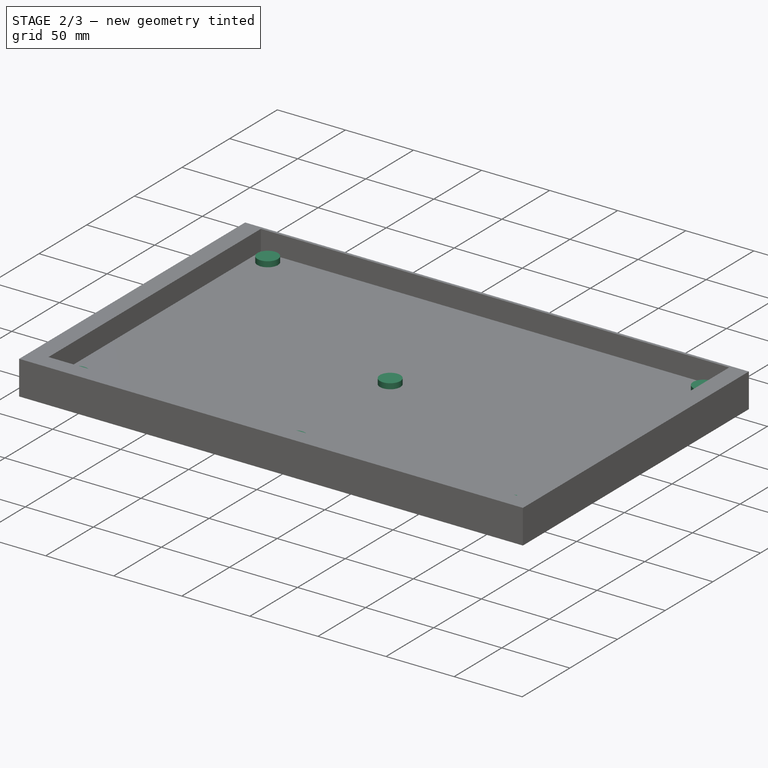
[diagram: stage 2 of 3 — iso view after this stage's code; geometry added in this stage tinted green]
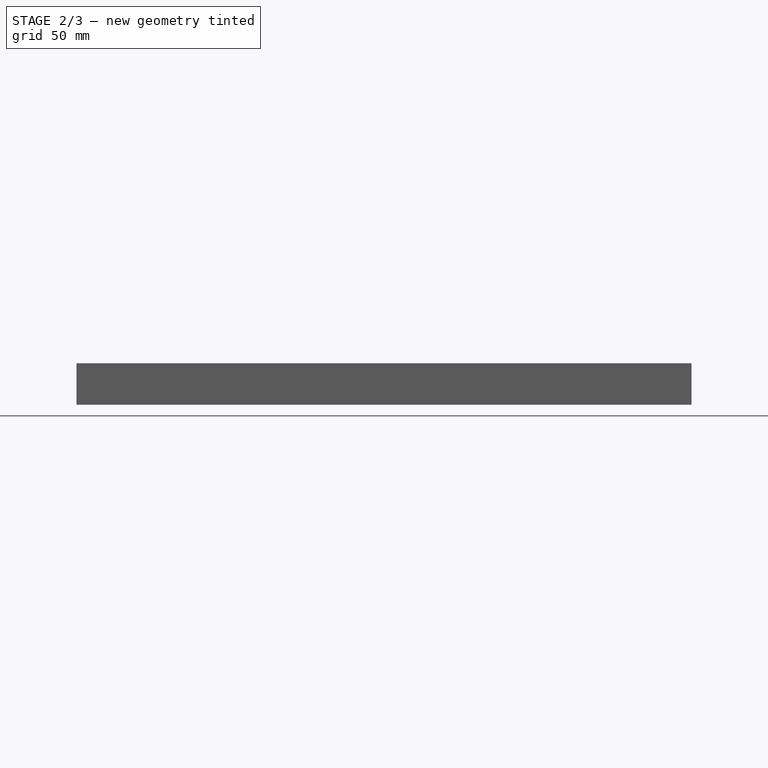
[diagram: stage 2 of 3 — front view after this stage's code; geometry added in this stage tinted green]
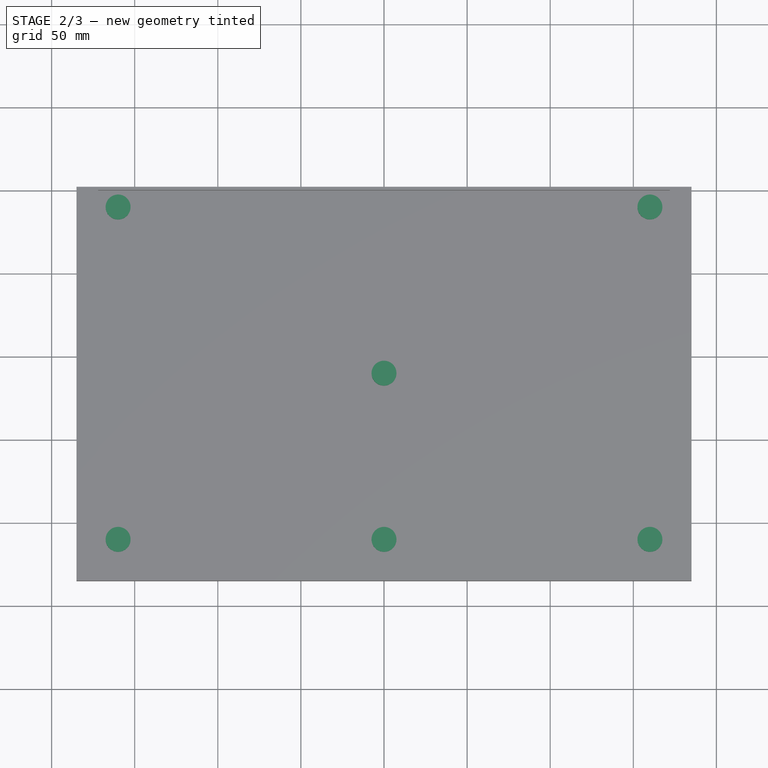
[diagram: stage 2 of 3 — top view after this stage's code; geometry added in this stage tinted green]
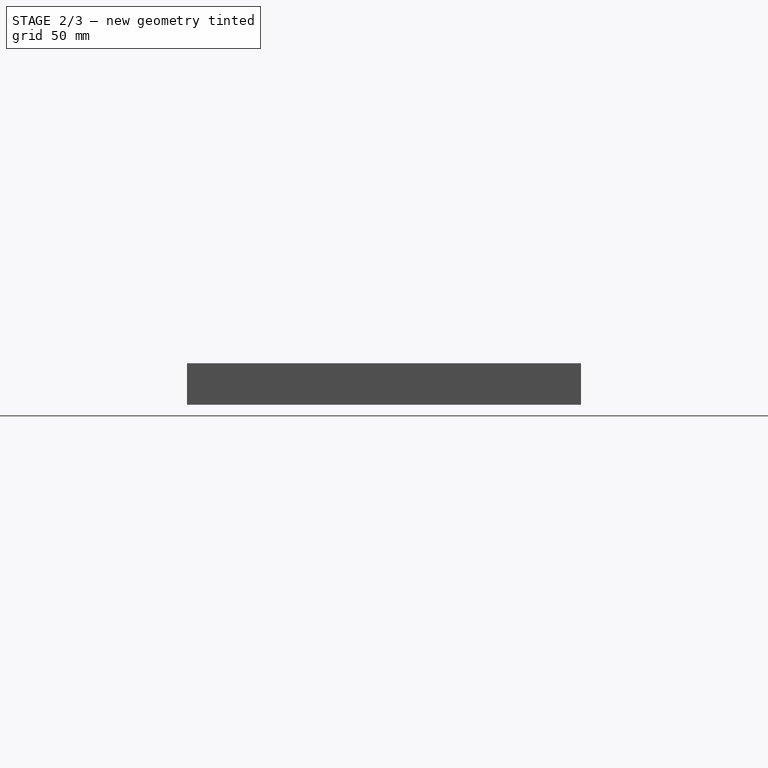
[diagram: stage 2 of 3 — right view after this stage's code; geometry added in this stage tinted green]
FEATURE [Sketcher::SketchObject] Sketch002  label="Sketch_Mounting"
  FullyConstrained = true
  MapMode = 5
  Placement = pos=(0,0,10) rot=(0,0,1;0rad)
  expr: Constraints[2] = Spreadsheet.mounting_phi
  sketch-geometry (6):
    g0: Circle CenterX=160 CenterY=-10 CenterZ=0 NormalX=0 NormalY=0 NormalZ=1 AngleXU=0 Radius=7.5
    g1: Circle CenterX=160 CenterY=-210 CenterZ=0 NormalX=0 NormalY=0 NormalZ=1 AngleXU=0 Radius=7.5
    g2: Circle CenterX=-160 CenterY=-10 CenterZ=0 NormalX=0 NormalY=0 NormalZ=1 AngleXU=0 Radius=7.5
    g3: Circle CenterX=-160 CenterY=-210 CenterZ=0 NormalX=0 NormalY=0 NormalZ=1 AngleXU=0 Radius=7.5
    g4: Circle CenterX=0 CenterY=-110 CenterZ=0 NormalX=0 NormalY=0 NormalZ=1 AngleXU=0 Radius=7.5
    g5: Circle CenterX=0 CenterY=-210 CenterZ=0 NormalX=0 NormalY=0 NormalZ=1 AngleXU=0 Radius=7.5
  constraints (16):
    c: DistanceX(g-2,g0) = 160
    c: DistanceY(g0,g-1) = 10
    c: Diameter(g0) = 15
    c: Vertical(g1,g0)
    c: DistanceY(g1) = -210
    c: Symmetric(g3,g1,g-2)
    c: Symmetric(g2,g0,g-2)
    c: Equal(g2,g0)
    c: Equal(g0,g3)
    c: Equal(g0,g1)
    c: PointOnObject(g4,g-2)
    c: DistanceY(g4) = -110
    c: Equal(g0,g4)
    c: PointOnObject(g5,g-2)
    c: Horizontal(g1,g5)
    c: Equal(g0,g5)
FEATURE [PartDesign::Pad] Pad001
  BaseFeature = -> Pocket
  Direction = (0,0,1)
  Length = 4
  Length2 = 10
  Profile = -> Sketch002
  ReferenceAxis = -> Sketch002 [N_Axis]
  Type = 0
  expr: Length = Spreadsheet.bottom_space
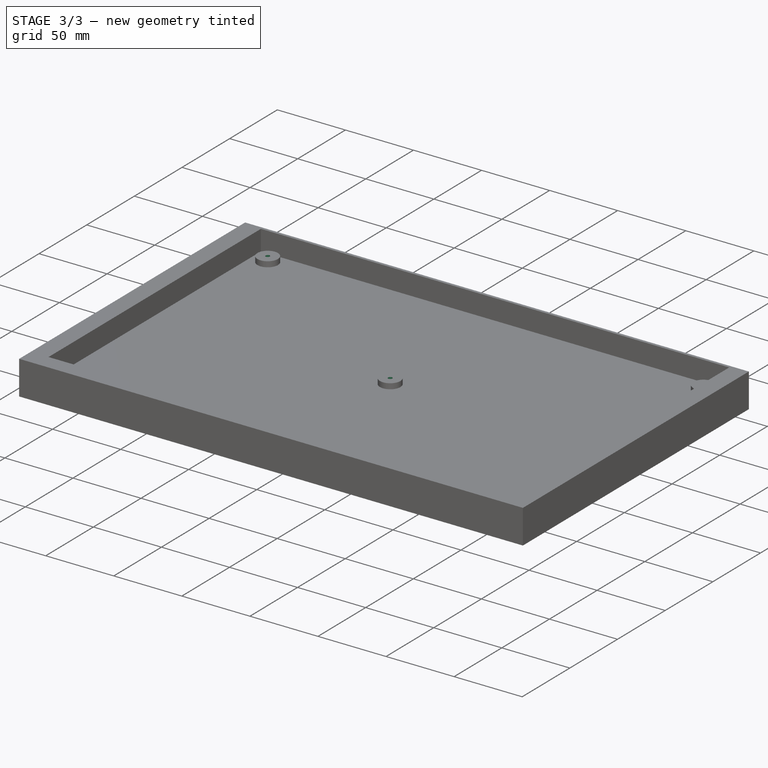
[diagram: stage 3 of 3 — iso view after this stage's code; geometry added in this stage tinted green]
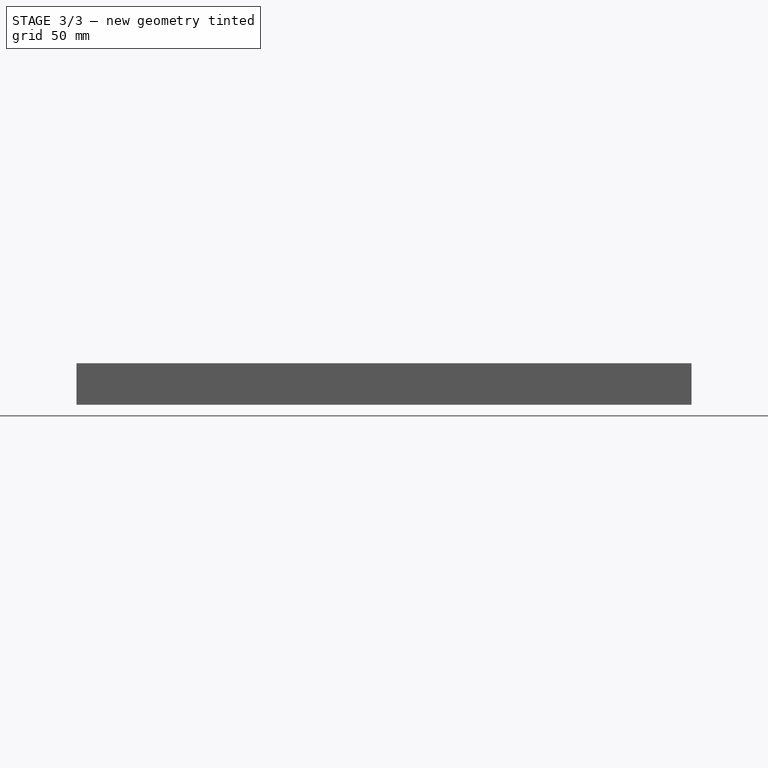
[diagram: stage 3 of 3 — front view after this stage's code; geometry added in this stage tinted green]
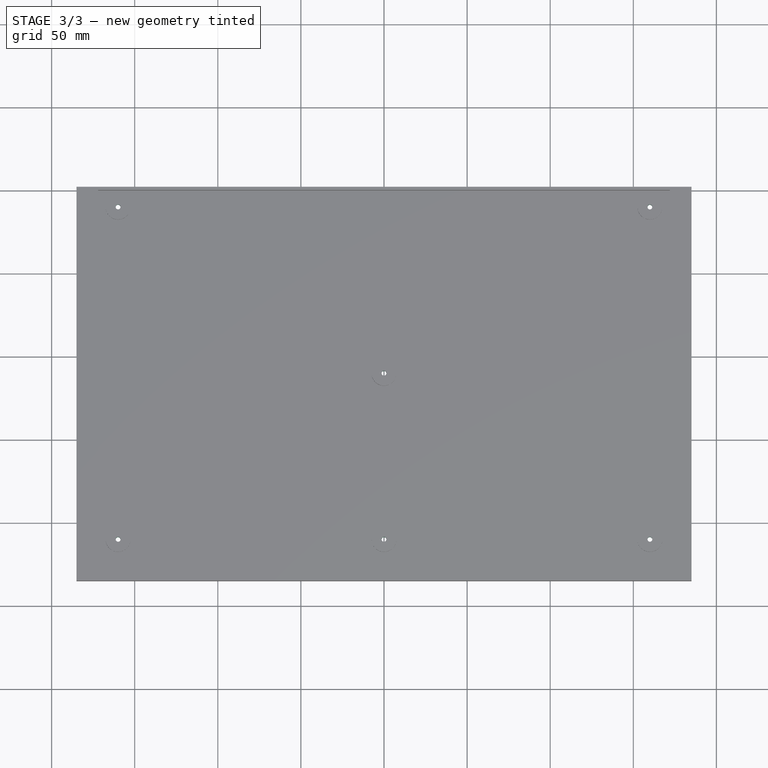
[diagram: stage 3 of 3 — top view after this stage's code; geometry added in this stage tinted green]
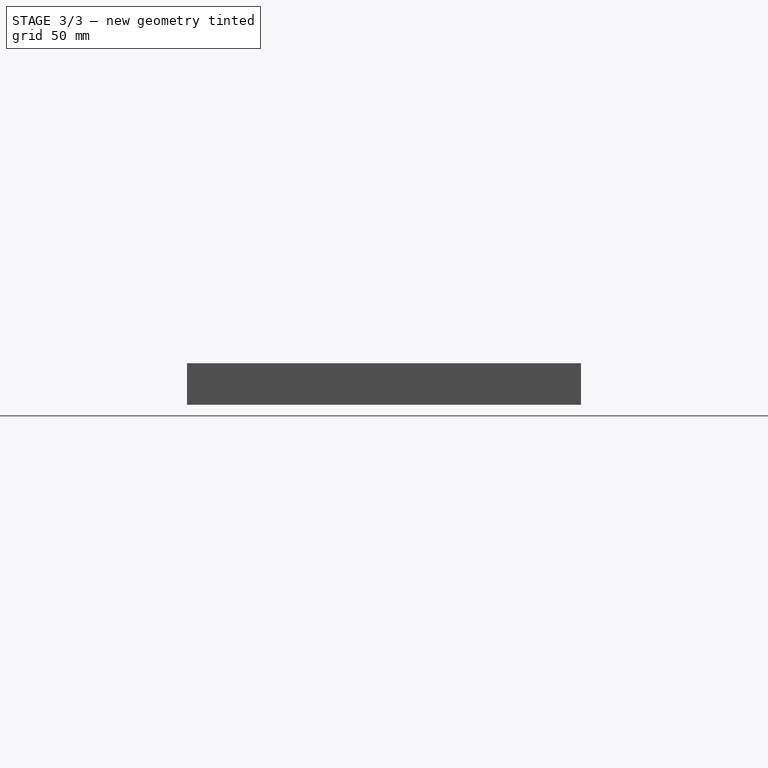
[diagram: stage 3 of 3 — right view after this stage's code; geometry added in this stage tinted green]
FEATURE [PartDesign::CoordinateSystem] Local_CS_f4e1
  AttacherType = Attacher::AttachEngine3D
  MapMode = 2
  Support = -> [X_Axis108]
FEATURE [Part::Feature] Pcb_f4e1
  Placement = pos=(-187.15,17.05,0) rot=(0,0,1;0rad)
  shape: bbox 340 x 220 x 1.6 mm, 160 faces (baked)
FEATURE [Sketcher::SketchObject] PCB_Sketch_f4e1
  FullyConstrained = false
  sketch-geometry (4):
    g0: LineSegment StartX=-170 StartY=0 StartZ=0 EndX=170 EndY=0 EndZ=0
    g1: LineSegment StartX=170 StartY=0 StartZ=0 EndX=170 EndY=-220 EndZ=0
    g2: LineSegment StartX=170 StartY=-220 StartZ=0 EndX=-170 EndY=-220 EndZ=0
    g3: LineSegment StartX=-170 StartY=-220 StartZ=0 EndX=-170 EndY=0 EndZ=0
  constraints (4):
    c: Coincident(g2,g3)
    c: Coincident(g0,g3)
    c: Coincident(g1,g2)
    c: Coincident(g0,g1)
FEATURE [App::Part] Board_Geoms_f4e1
  Group = -> [Pcb_f4e1,PCB_Sketch_f4e1]
  Origin = -> Origin109
FEATURE [App::Part] Step_Models_f4e1
  Origin = -> Origin110
FEATURE [App::Part] Board_f4e1  label="topplate"
  Group = -> [Local_CS_f4e1,Board_Geoms_f4e1,Step_Models_f4e1]
  Origin = -> Origin108
  Placement = pos=(0,0,18.4) rot=(0,1,0;3.14159rad)
  expr: .Placement.Base.z = Spreadsheet.bottom_to_top_plate_bottom
FEATURE [Sketcher::SketchObject] Sketch003  label="Ceil_holder_Sketch"
  FullyConstrained = true
  MapMode = 5
  Placement = pos=(0,0,25) rot=(0,0,1;0rad)
  Support = -> [Pad001]
  expr: Constraints[10] = Spreadsheet.ceil_width
  expr: Constraints[8] = Spreadsheet.ceil_holder_thickness
  expr: Constraints[9] = Spreadsheet.ceil_height
  sketch-geometry (4):
    g0: LineSegment StartX=-178 StartY=8 StartZ=0 EndX=178 EndY=8 EndZ=0
    g1: LineSegment StartX=178 StartY=8 StartZ=0 EndX=178 EndY=-215 EndZ=0
    g2: LineSegment StartX=178 StartY=-215 StartZ=0 EndX=-178 EndY=-215 EndZ=0
    g3: LineSegment StartX=-178 StartY=-215 StartZ=0 EndX=-178 EndY=8 EndZ=0
  constraints (11):
    c: Coincident(g0,g1)
    c: Coincident(g1,g2)
    c: Coincident(g2,g3)
    c: Coincident(g3,g0)
    c: Horizontal(g2)
    c: Vertical(g1)
    c: Vertical(g3)
    c: Symmetric(g0,g0,g-2)
    c: DistanceY(g-1,g0) = 8
    c: DistanceY(g1,g1) = 223
    c: DistanceX(g2,g2) = 356
FEATURE [Sketcher::SketchObject] Sketch004  label="Screw_holes_Sketch"
  FullyConstrained = true
  MapMode = 5
  Placement = pos=(0,0,14) rot=(0,0,1;0rad)
  expr: Constraints[0] = Spreadsheet.M2_5_hole_phi
  sketch-geometry (6):
    g0: Circle CenterX=160 CenterY=-10 CenterZ=0 NormalX=0 NormalY=0 NormalZ=1 AngleXU=0 Radius=1.4
    g1: Circle CenterX=160 CenterY=-210 CenterZ=0 NormalX=0 NormalY=0 NormalZ=1 AngleXU=0 Radius=1.4
    g2: Circle CenterX=-160 CenterY=-10 CenterZ=0 NormalX=0 NormalY=0 NormalZ=1 AngleXU=0 Radius=1.4
    g3: Circle CenterX=-160 CenterY=-210 CenterZ=0 NormalX=0 NormalY=0 NormalZ=1 AngleXU=0 Radius=1.4
    g4: Circle CenterX=0 CenterY=-210 CenterZ=0 NormalX=0 NormalY=0 NormalZ=1 AngleXU=0 Radius=1.4
    g5: Circle CenterX=0 CenterY=-110 CenterZ=0 NormalX=0 NormalY=0 NormalZ=1 AngleXU=0 Radius=1.4
  constraints (16):
    c: Diameter(g0) = 2.8
    c: DistanceX(g0) = 160
    c: DistanceY(g0) = -10
    c: Equal(g0,g1)
    c: DistanceY(g1) = -210
    c: Vertical(g0,g1)
    c: Diameter(g2) = 2.8
    c: Equal(g2,g3)
    c: PointOnObject(g4,g-2)
    c: Equal(g0,g4)
    c: Horizontal(g4,g1)
    c: PointOnObject(g5,g-2)
    c: DistanceY(g5) = -110
    c: Equal(g0,g5)
    c: Symmetric(g0,g2,g-2)
    c: Symmetric(g1,g3,g-2)
FEATURE [Sketcher::SketchObject] Sketch005  label="Nut_holds_Sketch"
  FullyConstrained = true
  MapMode = 5
  Placement = pos=(0,0,0) rot=(1,0,0;3.14159rad)
  expr: Constraints[122] = Spreadsheet.M2_5_nut_width / 2
  expr: Constraints[20] = Spreadsheet.M2_5_nut_width / 2
  expr: Constraints[38] = Spreadsheet.M2_5_nut_width / 2
  expr: Constraints[59] = Spreadsheet.M2_5_nut_width / 2
  expr: Constraints[80] = Spreadsheet.M2_5_nut_width / 2
  expr: Constraints[98] = Spreadsheet.M2_5_nut_width / 2
  sketch-geometry (42):
    g0: LineSegment StartX=2.6 StartY=108.499 StartZ=0 EndX=2.6 EndY=111.501 EndZ=0
    g1: LineSegment StartX=2.6 StartY=111.501 StartZ=0 EndX=0 EndY=113.002 EndZ=0
    g2: LineSegment StartX=0 StartY=113.002 StartZ=0 EndX=-2.6 EndY=111.501 EndZ=0
    g3: LineSegment StartX=-2.6 StartY=111.501 StartZ=0 EndX=-2.6 EndY=108.499 EndZ=0
    g4: LineSegment StartX=-2.6 StartY=108.499 StartZ=0 EndX=0 EndY=106.998 EndZ=0
    g5: LineSegment StartX=0 StartY=106.998 StartZ=0 EndX=2.6 EndY=108.499 EndZ=0
    g6: Circle CenterX=-2.543e-13 CenterY=110 CenterZ=0 NormalX=0 NormalY=0 NormalZ=1 AngleXU=0 Radius=3.00222
    g7: LineSegment StartX=-157.4 StartY=8.49889 StartZ=0 EndX=-157.4 EndY=11.5011 EndZ=0
    g8: LineSegment StartX=-157.4 StartY=11.5011 StartZ=0 EndX=-160 EndY=13.0022 EndZ=0
    g9: LineSegment StartX=-160 StartY=13.0022 StartZ=0 EndX=-162.6 EndY=11.5011 EndZ=0
    g10: LineSegment StartX=-162.6 StartY=11.5011 StartZ=0 EndX=-162.6 EndY=8.49889 EndZ=0
    g11: LineSegment StartX=-162.6 StartY=8.49889 StartZ=0 EndX=-160 EndY=6.99778 EndZ=0
    g12: LineSegment StartX=-160 StartY=6.99778 StartZ=0 EndX=-157.4 EndY=8.49889 EndZ=0
    g13: Circle CenterX=-160 CenterY=10 CenterZ=0 NormalX=0 NormalY=0 NormalZ=1 AngleXU=0 Radius=3.00222
    g14: LineSegment StartX=-157.4 StartY=208.499 StartZ=0 EndX=-157.4 EndY=211.501 EndZ=0
    g15: LineSegment StartX=-157.4 StartY=211.501 StartZ=0 EndX=-160 EndY=213.002 EndZ=0
    g16: LineSegment StartX=-160 StartY=213.002 StartZ=0 EndX=-162.6 EndY=211.501 EndZ=0
    g17: LineSegment StartX=-162.6 StartY=211.501 StartZ=0 EndX=-162.6 EndY=208.499 EndZ=0
    g18: LineSegment StartX=-162.6 StartY=208.499 StartZ=0 EndX=-160 EndY=206.998 EndZ=0
    g19: LineSegment StartX=-160 StartY=206.998 StartZ=0 EndX=-157.4 EndY=208.499 EndZ=0
    g20: Circle CenterX=-160 CenterY=210 CenterZ=0 NormalX=0 NormalY=0 NormalZ=1 AngleXU=0 Radius=3.00222
    g21: LineSegment StartX=157.4 StartY=8.49889 StartZ=0 EndX=157.4 EndY=11.5011 EndZ=0
    g22: LineSegment StartX=157.4 StartY=11.5011 StartZ=0 EndX=160 EndY=13.0022 EndZ=0
    g23: LineSegment StartX=160 StartY=13.0022 StartZ=0 EndX=162.6 EndY=11.5011 EndZ=0
    g24: LineSegment StartX=162.6 StartY=11.5011 StartZ=0 EndX=162.6 EndY=8.49889 EndZ=0
    g25: LineSegment StartX=162.6 StartY=8.49889 StartZ=0 EndX=160 EndY=6.99778 EndZ=0
    g26: LineSegment StartX=160 StartY=6.99778 StartZ=0 EndX=157.4 EndY=8.49889 EndZ=0
    g27: Circle CenterX=160 CenterY=10 CenterZ=0 NormalX=0 NormalY=0 NormalZ=1 AngleXU=0 Radius=3.00222
    g28: LineSegment StartX=157.4 StartY=208.499 StartZ=0 EndX=157.4 EndY=211.501 EndZ=0
    g29: LineSegment StartX=157.4 StartY=211.501 StartZ=0 EndX=160 EndY=213.002 EndZ=0
    g30: LineSegment StartX=160 StartY=213.002 StartZ=0 EndX=162.6 EndY=211.501 EndZ=0
    g31: LineSegment StartX=162.6 StartY=211.501 StartZ=0 EndX=162.6 EndY=208.499 EndZ=0
    g32: LineSegment StartX=162.6 StartY=208.499 StartZ=0 EndX=160 EndY=206.998 EndZ=0
    g33: LineSegment StartX=160 StartY=206.998 StartZ=0 EndX=157.4 EndY=208.499 EndZ=0
    g34: Circle CenterX=160 CenterY=210 CenterZ=0 NormalX=0 NormalY=0 NormalZ=1 AngleXU=0 Radius=3.00222
    g35: LineSegment StartX=2.6 StartY=208.499 StartZ=0 EndX=2.6 EndY=211.501 EndZ=0
    g36: LineSegment StartX=2.6 StartY=211.501 StartZ=0 EndX=1.608e-13 EndY=213.002 EndZ=0
    g37: LineSegment StartX=1.608e-13 StartY=213.002 StartZ=0 EndX=-2.6 EndY=211.501 EndZ=0
    g38: LineSegment StartX=-2.6 StartY=211.501 StartZ=0 EndX=-2.6 EndY=208.499 EndZ=0
    g39: LineSegment StartX=-2.6 StartY=208.499 StartZ=0 EndX=1.608e-13 EndY=206.998 EndZ=0
    g40: LineSegment StartX=1.608e-13 StartY=206.998 StartZ=0 EndX=2.6 EndY=208.499 EndZ=0
    g41: Circle CenterX=0 CenterY=210 CenterZ=0 NormalX=0 NormalY=0 NormalZ=1 AngleXU=0 Radius=3.00222
  constraints (102):
    c: Coincident(g0,g1)
    c: Coincident(g1,g2)
    c: Coincident(g2,g3)
    c: Coincident(g3,g4)
    c: Coincident(g4,g5)
    c: Coincident(g5,g0)
    c: Equal(g0, g1-g5) x5
    c: PointOnObject(g0,g6)
    c: PointOnObject(g1,g6)
    c: PointOnObject(g2,g6)
    c: PointOnObject(g3,g6)
    c: PointOnObject(g4,g6)
    c: PointOnObject(g5,g6)
    c: PointOnObject(g1,g-2)
    c: PointOnObject(g4,g-2)
    c: DistanceY(g6) = 110
    c: Distance(g6,g3) = 2.6
    c: Coincident(g7,g8)
    c: Coincident(g8,g9)
    c: Coincident(g9,g10)
    c: Coincident(g10,g11)
    c: Coincident(g11,g12)
    c: Coincident(g12,g7)
    c: Equal(g7, g8-g12) x5
    c: PointOnObject(g7,g13)
    c: PointOnObject(g8,g13)
    c: PointOnObject(g9,g13)
    c: PointOnObject(g10,g13)
    c: PointOnObject(g11,g13)
    c: PointOnObject(g12,g13)
    c: Distance(g13,g10) = 2.6
    c: DistanceY(g13) = 10
    c: DistanceX(g13) = -160
    c: Vertical(g11,g8)
    c: Coincident(g14,g15)
    c: Coincident(g15,g16)
    c: Coincident(g16,g17)
    c: Coincident(g17,g18)
    c: Coincident(g18,g19)
    c: Coincident(g19,g14)
    c: Equal(g14, g15-g19) x5
    c: PointOnObject(g14,g20)
    c: PointOnObject(g15,g20)
    c: PointOnObject(g16,g20)
    c: PointOnObject(g17,g20)
    c: PointOnObject(g18,g20)
    c: PointOnObject(g19,g20)
    c: Distance(g20,g17) = 2.6
    c: Vertical(g18,g15)
    c: Vertical(g13,g20)
    c: DistanceY(g20) = 210
    c: Coincident(g21,g22)
    c: Coincident(g22,g23)
    c: Coincident(g23,g24)
    c: Coincident(g24,g25)
    c: Coincident(g25,g26)
    c: Coincident(g26,g21)
    c: Equal(g21, g22-g26) x5
    c: PointOnObject(g21,g27)
    c: PointOnObject(g22,g27)
    c: PointOnObject(g23,g27)
    c: PointOnObject(g24,g27)
    c: PointOnObject(g25,g27)
    c: PointOnObject(g26,g27)
    c: Distance(g27,g24) = 2.6
    c: Coincident(g28,g29)
    c: Coincident(g29,g30)
    c: Coincident(g30,g31)
    c: Coincident(g31,g32)
    c: Coincident(g32,g33)
    c: Coincident(g33,g28)
    c: Equal(g28, g29-g33) x5
    c: PointOnObject(g28,g34)
    c: PointOnObject(g29,g34)
    c: PointOnObject(g30,g34)
    c: PointOnObject(g31,g34)
    c: PointOnObject(g32,g34)
    c: PointOnObject(g33,g34)
    c: Distance(g34,g31) = 2.6
    c: Vertical(g29,g32)
    c: Vertical(g22,g25)
    c: DistanceX(g27) = 160
    c: DistanceX(g34) = 160
    c: DistanceY(g34) = 210
    c: DistanceY(g27) = 10
    c: Coincident(g35,g36)
    c: Coincident(g36,g37)
    c: Coincident(g37,g38)
    c: Coincident(g38,g39)
    c: Coincident(g39,g40)
    c: Coincident(g40,g35)
    c: Equal(g35, g36-g40) x5
    c: PointOnObject(g35,g41)
    c: PointOnObject(g36,g41)
    c: PointOnObject(g37,g41)
    c: PointOnObject(g38,g41)
    c: PointOnObject(g39,g41)
    c: PointOnObject(g40,g41)
    c: Distance(g41,g38) = 2.6
    c: PointOnObject(g41,g-2)
    c: Vertical(g36,g39)
    c: DistanceY(g41) = 210
FEATURE [PartDesign::Pocket] Pocket002
  BaseFeature = -> Pad001
  Direction = (0,0,1)
  Length = 3
  Length2 = 5
  Profile = -> Sketch005
  ReferenceAxis = -> Sketch005 [N_Axis]
  Type = 0
  expr: Length = Spreadsheet.nut_hole_thickness
FEATURE [PartDesign::Hole] Hole
  BaseFeature = -> Pocket002
  CustomThreadClearance = 0
  Depth = 25
  DepthType = 0
  Diameter = 2.9
  DrillForDepth = false
  DrillPoint = 1
  DrillPointAngle = 118
  HoleCutCountersinkAngle = 90
  HoleCutCustomValues = false
  HoleCutDepth = 0
  HoleCutDiameter = 6.1
  HoleCutType = 0
  ModelThread = false
  Profile = -> Sketch004
  Tapered = false
  TaperedAngle = 90
  ThreadClass = 0
  ThreadDepth = 25
  ThreadDepthType = 0
  ThreadDirection = 0
  ThreadFit = 0
  ThreadSize = 8
  ThreadType = 1
  Threaded = false
  UseCustomThreadClearance = false
FEATURE [PartDesign::Body] Body
  Group = -> [Sketch,Pad,Sketch001,Pocket,Sketch002,Pad001,Sketch003,Sketch004,Sketch005,Pocket002,Hole]
  Origin = -> Origin107
  Tip = -> Hole
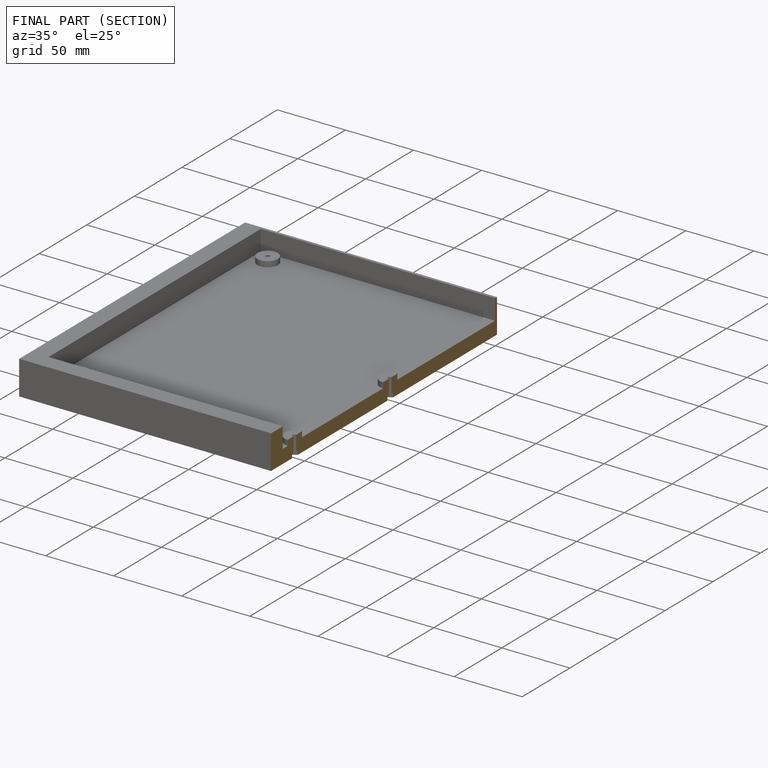
[diagram: finished part — half-section view (interior)]
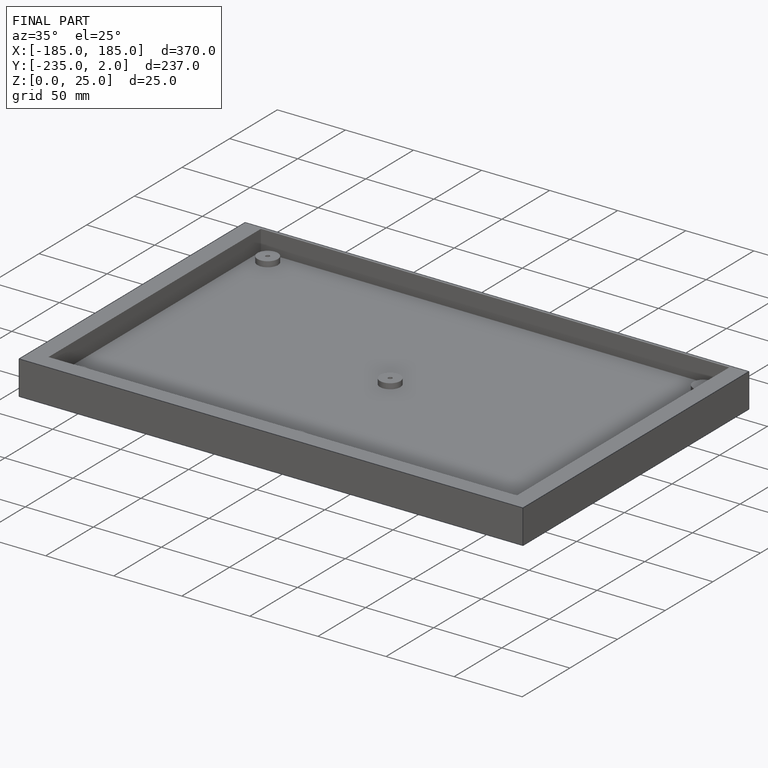
[diagram: finished part — iso view with bounding-box wireframe]
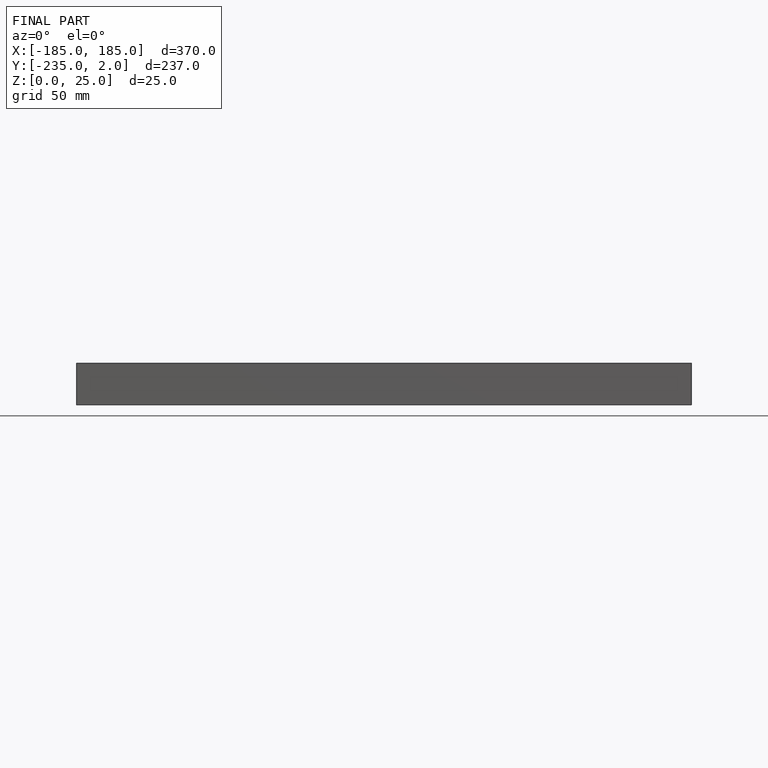
[diagram: finished part — front view with bounding-box wireframe]
